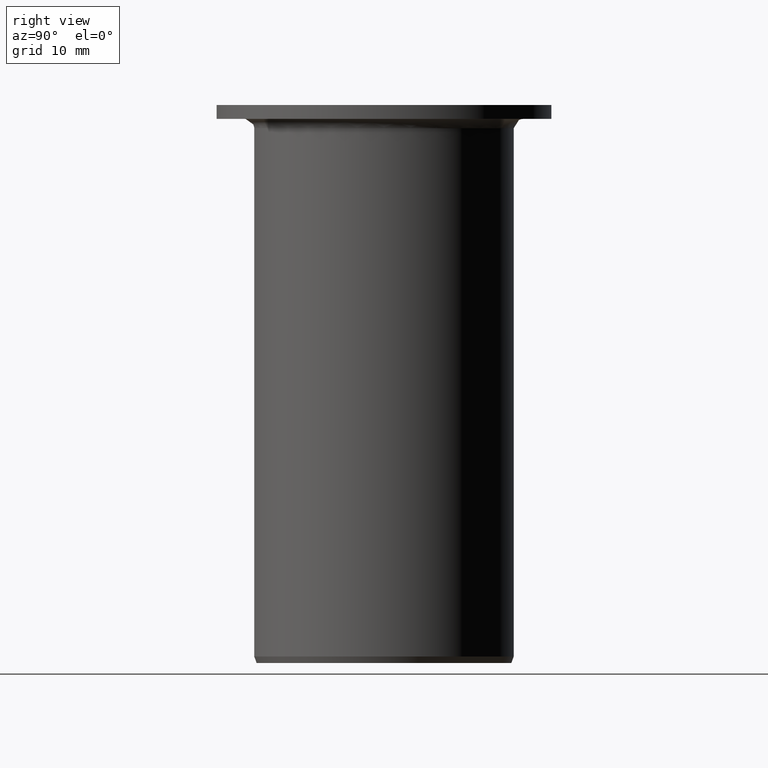
[diagram: clean part render]
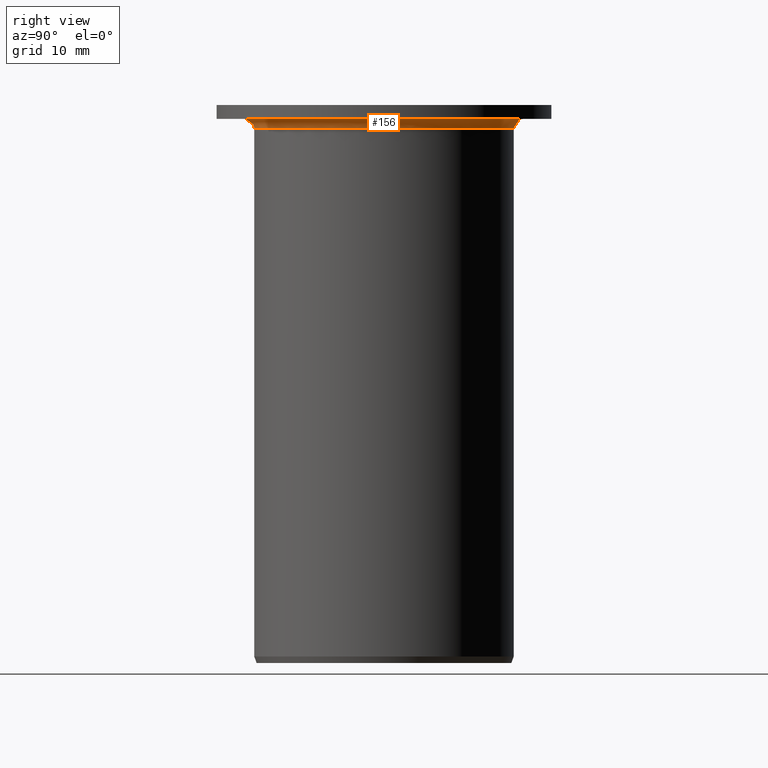
[diagram: same view with one face highlighted and labeled with its STEP entity id]
A machine part, right view. The second image highlights one B-rep face of the part: STEP entity #156.
In plain terms, the highlighted toroidal blend (fillet) surface has major radius 15 mm and minor (blend) radius 1 mm.
Its self-contained STEP definition (entity closure, byte-faithful):
#156=ADVANCED_FACE('',(#173),#174,.F.);
#173=FACE_OUTER_BOUND('',#198,.T.);
#174=TOROIDAL_SURFACE('',#199,0.015,0.001);
#198=EDGE_LOOP('',(#243,#244,#245,#246));
#199=AXIS2_PLACEMENT_3D('',#247,#248,#249);
#243=ORIENTED_EDGE('',*,*,#328,.T.);
#244=ORIENTED_EDGE('',*,*,#329,.T.);
#245=ORIENTED_EDGE('',*,*,#330,.F.);
#246=ORIENTED_EDGE('',*,*,#316,.F.);
#247=CARTESIAN_POINT('',(0.0,3.46944695195362E-018,0.0575));
#248=DIRECTION('',(0.0,-6.12323399573677E-017,-1.0));
#249=DIRECTION('',(0.0,1.0,-6.12323399573677E-017));
#316=EDGE_CURVE('',#349,#351,#352,.T.);
#328=EDGE_CURVE('',#349,#372,#373,.T.);
#329=EDGE_CURVE('',#372,#374,#375,.T.);
#330=EDGE_CURVE('',#351,#374,#376,.T.);
#349=VERTEX_POINT('',#416);
#351=VERTEX_POINT('',#419);
#352=B_SPLINE_CURVE_WITH_KNOTS('',3,(#420,#421,#422,#423,#424,#425,#426,#427),.UNSPECIFIED.,.F.,.F.,(4,2,2,4),(1.2836943213837E-005,0.000405276086234918,0.000797715229255998,0.00158259351529816),.UNSPECIFIED.);
#372=VERTEX_POINT('',#474);
#373=CIRCLE('',#475,0.015);
#374=VERTEX_POINT('',#476);
#375=B_SPLINE_CURVE_WITH_KNOTS('',3,(#477,#478,#479,#480,#481,#482,#483,#484),.UNSPECIFIED.,.F.,.F.,(4,2,2,4),(1.2836943213837E-005,0.000405276086234918,0.000797715229255998,0.00158259351529816),.UNSPECIFIED.);
#376=CIRCLE('',#485,0.014);
#416=CARTESIAN_POINT('',(0.0149873904376732,-0.000614921026426486,0.0585));
#419=CARTESIAN_POINT('',(0.0139930965719509,-0.00043960019114672,0.0575));
#420=CARTESIAN_POINT('',(0.0149873904376732,-0.000614921026426486,0.0585));
#421=CARTESIAN_POINT('',(0.0148569873135311,-0.000591927437271556,0.0585));
#422=CARTESIAN_POINT('',(0.0147284562059654,-0.000569263935147391,0.0584742355808303));
#423=CARTESIAN_POINT('',(0.0144886199122816,-0.00052697432561781,0.0583747638649479));
#424=CARTESIAN_POINT('',(0.0143782902041978,-0.000507520221308952,0.0583009443912403));
#425=CARTESIAN_POINT('',(0.0141025536690407,-0.000458900430593686,0.0580252073991258));
#426=CARTESIAN_POINT('',(0.0139930965719477,-0.000439600191146164,0.0577654482370816));
#427=CARTESIAN_POINT('',(0.0139930965719476,-0.000439600191146147,0.0575000000000004));
#474=CARTESIAN_POINT('',(0.0149873904376732,0.000614921026426494,0.0585));
#475=AXIS2_PLACEMENT_3D('',#528,#529,#530);
#476=CARTESIAN_POINT('',(0.0139930965719509,0.000439600191146728,0.0575));
#477=CARTESIAN_POINT('',(0.0149873904376732,0.000614921026426493,0.0585));
#478=CARTESIAN_POINT('',(0.0148569873135311,0.000591927437271563,0.0585));
#479=CARTESIAN_POINT('',(0.0147284562059654,0.000569263935147397,0.0584742355808303));
#480=CARTESIAN_POINT('',(0.0144886199122816,0.000526974325617817,0.0583747638649479));
#481=CARTESIAN_POINT('',(0.0143782902041978,0.000507520221308958,0.0583009443912403));
#482=CARTESIAN_POINT('',(0.0141025536690407,0.000458900430593692,0.0580252073991258));
#483=CARTESIAN_POINT('',(0.0139930965719477,0.000439600191146171,0.0577654482370816));
#484=CARTESIAN_POINT('',(0.0139930965719476,0.000439600191146154,0.0575000000000004));
#485=AXIS2_PLACEMENT_3D('',#531,#532,#533);
#528=CARTESIAN_POINT('',(0.0,3.46944695195362E-018,0.0585));
#529=DIRECTION('',(0.0,-6.12323399573677E-017,-1.0));
#530=DIRECTION('',(0.0,1.0,-6.12323399573677E-017));
#531=CARTESIAN_POINT('',(0.0,3.46944695195362E-018,0.0575));
#532=DIRECTION('',(0.0,-6.12323399573677E-017,-1.0));
#533=DIRECTION('',(0.0,1.0,-6.12323399573677E-017));